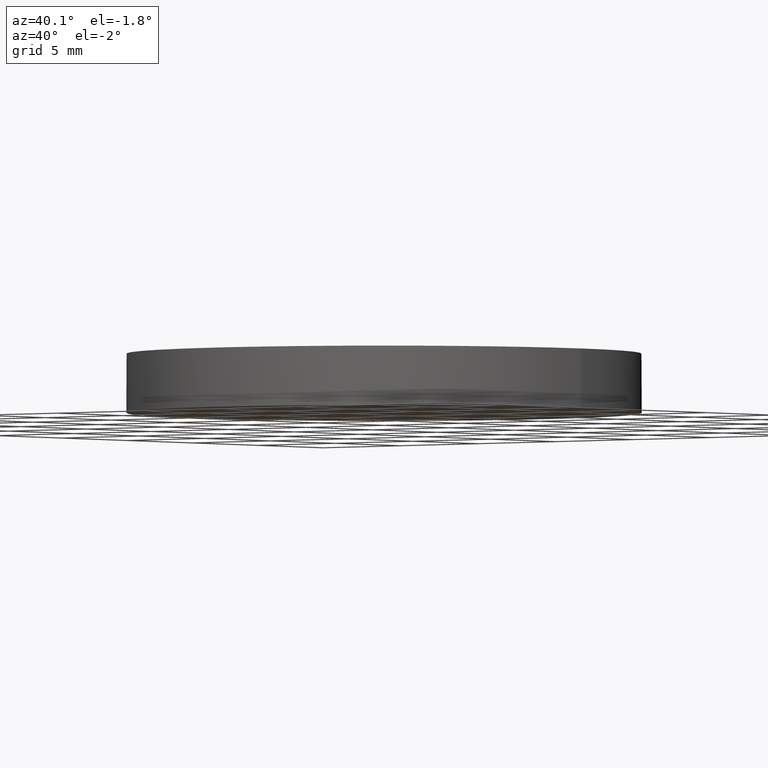
[diagram: clean part render]
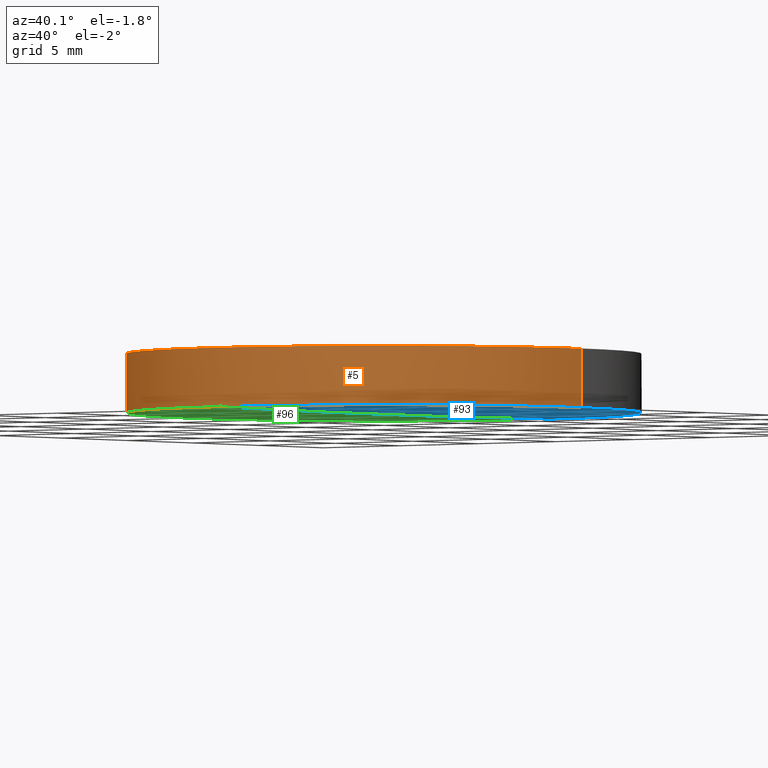
[diagram: same view with three faces highlighted in distinct colors, each labeled with its STEP entity id]
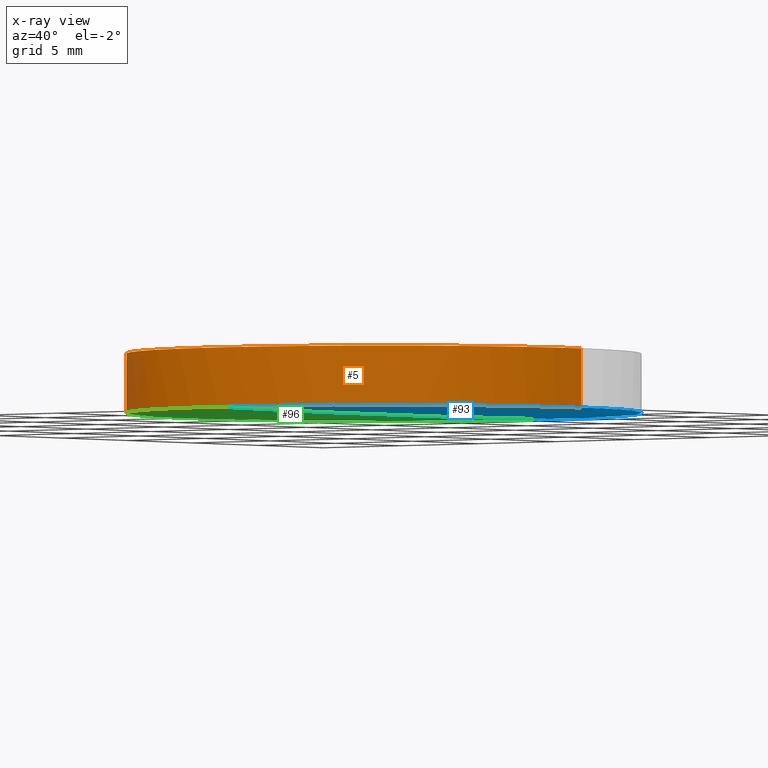
[diagram: x-ray of the same camera — body ghosted, the three highlighted faces saturated]
A machine part, auxiliary view with three faces highlighted in distinct colors.
The next image is the same camera in x-ray (body ghosted, the three faces saturated) — at least one of them is partly hidden behind the body in this view.
Their STEP definitions:

[orange] entity #5 — the highlighted cylindrical surface (partial cylindrical patch) has radius 12.7 mm, axis along (0, 0, 1).
#2 = EDGE_CURVE ( 'NONE', #45, #191, #126, .T. ) ;
#5 = ADVANCED_FACE ( 'NONE', ( #195 ), #73, .T. ) ;
#8 = CARTESIAN_POINT ( 'NONE',  ( -12.69999999999999900, 3.997792089092478900E-015, 0.08182665158325720700 ) ) ;
#24 = DIRECTION ( 'NONE',  ( 1.000000000000000000, 0.0000000000000000000, 0.0000000000000000000 ) ) ;
#32 = VECTOR ( 'NONE', #226, 1000.000000000000000 ) ;
#39 = DIRECTION ( 'NONE',  ( 1.000000000000000000, 0.0000000000000000000, 0.0000000000000000000 ) ) ;
#41 = ORIENTED_EDGE ( 'NONE', *, *, #184, .F. ) ;
#43 = VERTEX_POINT ( 'NONE', #208 ) ;
#45 = VERTEX_POINT ( 'NONE', #166 ) ;
#51 = CARTESIAN_POINT ( 'NONE',  ( 12.69999999999999900, 2.442490654175340100E-015, 0.08182665158325720700 ) ) ;
#52 = CARTESIAN_POINT ( 'NONE',  ( -9.019215825501548900E-014, -12.69999999999729000, 0.08182665158327578900 ) ) ;
#56 = ORIENTED_EDGE ( 'NONE', *, *, #167, .T. ) ;
#63 = EDGE_LOOP ( 'NONE', ( #95, #41, #231, #234, #56 ) ) ;
#68 = CARTESIAN_POINT ( 'NONE',  ( 4.996003610813200500E-016, 2.442490654175340100E-015, 0.08182665158325720700 ) ) ;
#70 = DIRECTION ( 'NONE',  ( 0.0000000000000000000, 0.0000000000000000000, 1.000000000000000000 ) ) ;
#73 = CYLINDRICAL_SURFACE ( 'NONE', #197, 12.69999999999999900 ) ;
#76 = DIRECTION ( 'NONE',  ( 0.0000000000000000000, 0.0000000000000000000, 1.000000000000000000 ) ) ;
#79 = AXIS2_PLACEMENT_3D ( 'NONE', #68, #124, #180 ) ;
#89 = VERTEX_POINT ( 'NONE', #229 ) ;
#92 = AXIS2_PLACEMENT_3D ( 'NONE', #219, #109, #39 ) ;
#95 = ORIENTED_EDGE ( 'NONE', *, *, #2, .F. ) ;
#104 = VECTOR ( 'NONE', #70, 1000.000000000000000 ) ;
#109 = DIRECTION ( 'NONE',  ( -0.0000000000000000000, -0.0000000000000000000, -1.000000000000000000 ) ) ;
#121 = CARTESIAN_POINT ( 'NONE',  ( -12.69999999999999900, 3.997792089092478900E-015, 3.000000000000000000 ) ) ;
#123 = EDGE_CURVE ( 'NONE', #43, #89, #161, .T. ) ;
#124 = DIRECTION ( 'NONE',  ( -0.0000000000000000000, -0.0000000000000000000, -1.000000000000000000 ) ) ;
#126 = LINE ( 'NONE', #8, #32 ) ;
#127 = EDGE_CURVE ( 'NONE', #43, #129, #209, .T. ) ;
#129 = VERTEX_POINT ( 'NONE', #52 ) ;
#131 = CARTESIAN_POINT ( 'NONE',  ( 4.996003610813200500E-016, 2.442490654175340100E-015, 0.08182665158325720700 ) ) ;
#138 = CIRCLE ( 'NONE', #210, 12.69999999999999900 ) ;
#140 = DIRECTION ( 'NONE',  ( 1.000000000000000000, 0.0000000000000000000, 0.0000000000000000000 ) ) ;
#159 = CARTESIAN_POINT ( 'NONE',  ( 4.996003610813200500E-016, 2.442490654175340100E-015, 0.08182665158325720700 ) ) ;
#161 = LINE ( 'NONE', #51, #104 ) ;
#166 = CARTESIAN_POINT ( 'NONE',  ( -12.69999999999999900, 3.997792089092478900E-015, 0.08182665158325720700 ) ) ;
#167 = EDGE_CURVE ( 'NONE', #89, #191, #187, .T. ) ;
#180 = DIRECTION ( 'NONE',  ( 1.000000000000000000, 0.0000000000000000000, 0.0000000000000000000 ) ) ;
#184 = EDGE_CURVE ( 'NONE', #129, #45, #138, .T. ) ;
#187 = CIRCLE ( 'NONE', #92, 12.69999999999999900 ) ;
#191 = VERTEX_POINT ( 'NONE', #121 ) ;
#195 = FACE_OUTER_BOUND ( 'NONE', #63, .T. ) ;
#197 = AXIS2_PLACEMENT_3D ( 'NONE', #131, #76, #24 ) ;
#208 = CARTESIAN_POINT ( 'NONE',  ( 12.69999999999999900, 2.442490654175340100E-015, 0.08182665158325720700 ) ) ;
#209 = CIRCLE ( 'NONE', #79, 12.69999999999999900 ) ;
#210 = AXIS2_PLACEMENT_3D ( 'NONE', #159, #215, #140 ) ;
#215 = DIRECTION ( 'NONE',  ( -0.0000000000000000000, -0.0000000000000000000, -1.000000000000000000 ) ) ;
#219 = CARTESIAN_POINT ( 'NONE',  ( 4.996003610813200500E-016, 2.442490654175340100E-015, 3.000000000000000000 ) ) ;
#226 = DIRECTION ( 'NONE',  ( 0.0000000000000000000, 0.0000000000000000000, 1.000000000000000000 ) ) ;
#229 = CARTESIAN_POINT ( 'NONE',  ( 12.69999999999999900, 2.442490654175340100E-015, 3.000000000000000000 ) ) ;
#231 = ORIENTED_EDGE ( 'NONE', *, *, #127, .F. ) ;
#234 = ORIENTED_EDGE ( 'NONE', *, *, #123, .T. ) ;

[blue] entity #93 — the highlighted face is a freeform B-spline surface patch.
#1 = CARTESIAN_POINT ( 'NONE',  ( 4.996003610813200500E-016, 2.442490654175340100E-015, 0.08182665158325720700 ) ) ;
#3 = ORIENTED_EDGE ( 'NONE', *, *, #127, .T. ) ;
#6 = ORIENTED_EDGE ( 'NONE', *, *, #16, .T. ) ;
#16 = EDGE_CURVE ( 'NONE', #129, #36, #202, .T. ) ;
#17 = DIRECTION ( 'NONE',  ( -0.0000000000000000000, -0.0000000000000000000, -1.000000000000000000 ) ) ;
#20 = FACE_OUTER_BOUND ( 'NONE', #82, .T. ) ;
#26 = AXIS2_PLACEMENT_3D ( 'NONE', #214, #99, #190 ) ;
#28 = CARTESIAN_POINT ( 'NONE',  ( 12.77655787048304800, 4.284373327981428200, 0.05487818495982228800 ) ) ;
#30 = CARTESIAN_POINT ( 'NONE',  ( 4.259001726864794600, 4.284373327981430000, -0.02793566560405784000 ) ) ;
#34 = DIRECTION ( 'NONE',  ( 1.000000000000000000, -1.776356839400250500E-015, 0.0000000000000000000 ) ) ;
#36 = VERTEX_POINT ( 'NONE', #206 ) ;
#43 = VERTEX_POINT ( 'NONE', #208 ) ;
#52 = CARTESIAN_POINT ( 'NONE',  ( -9.019215825501548900E-014, -12.69999999999729000, 0.08182665158327578900 ) ) ;
#53 = ORIENTED_EDGE ( 'NONE', *, *, #174, .T. ) ;
#57 = AXIS2_PLACEMENT_3D ( 'NONE', #1, #17, #34 ) ;
#62 = CARTESIAN_POINT ( 'NONE',  ( 4.258518895623539400, 12.85239141229468300, 0.08380224626203161600 ) ) ;
#64 = CARTESIAN_POINT ( 'NONE',  ( 12.77510942746959300, 12.85239141229468100, 0.1666067084488165300 ) ) ;
#68 = CARTESIAN_POINT ( 'NONE',  ( 4.996003610813200500E-016, 2.442490654175340100E-015, 0.08182665158325720700 ) ) ;
#79 = AXIS2_PLACEMENT_3D ( 'NONE', #68, #124, #180 ) ;
#81 = CARTESIAN_POINT ( 'NONE',  ( 4.259001726864791900, -4.284373327980987700, -0.02793566560405892300 ) ) ;
#82 = EDGE_LOOP ( 'NONE', ( #3, #6, #53 ) ) ;
#83 = CARTESIAN_POINT ( 'NONE',  ( 8.516948338615323500, 12.85239141229468300, 0.1114041201864036700 ) ) ;
#93 = ADVANCED_FACE ( 'NONE', ( #20 ), #146, .T. ) ;
#97 = CIRCLE ( 'NONE', #57, 12.69999999999999900 ) ;
#99 = DIRECTION ( 'NONE',  ( 1.000000000000000000, -2.358650648363000000E-016, -2.038354188545150100E-016 ) ) ;
#102 = CARTESIAN_POINT ( 'NONE',  ( -8.416483910166389800E-014, 12.85239141229468500, 0.08380224626203247600 ) ) ;
#115 = CARTESIAN_POINT ( 'NONE',  ( -8.620851138670619400E-014, 4.284373327981430900, -0.02793566560405697300 ) ) ;
#116 = CARTESIAN_POINT ( 'NONE',  ( 8.516948338615316400, -12.85239141229424200, 0.1114041201864036700 ) ) ;
#124 = DIRECTION ( 'NONE',  ( -0.0000000000000000000, -0.0000000000000000000, -1.000000000000000000 ) ) ;
#127 = EDGE_CURVE ( 'NONE', #43, #129, #209, .T. ) ;
#129 = VERTEX_POINT ( 'NONE', #52 ) ;
#133 = CARTESIAN_POINT ( 'NONE',  ( 12.77655787048304600, -4.284373327980989500, 0.05487818495982120500 ) ) ;
#134 = CARTESIAN_POINT ( 'NONE',  ( 4.258518895623534000, -12.85239141229424200, 0.08380224626203161600 ) ) ;
#137 = CARTESIAN_POINT ( 'NONE',  ( -8.822957937228058900E-014, -4.284373327980986800, -0.02793566560405805900 ) ) ;
#146 =( BOUNDED_SURFACE ( )  B_SPLINE_SURFACE ( 3, 3, ( 
 ( #228, #134, #116, #232 ),
 ( #137, #81, #151, #133 ),
 ( #115, #30, #168, #28 ),
 ( #102, #62, #83, #64 ) ),
 .UNSPECIFIED., .F., .F., .F. ) 
 B_SPLINE_SURFACE_WITH_KNOTS ( ( 4, 4 ),
 ( 4, 4 ),
 ( 0.0000000000000000000, 1.000000000000000000 ),
 ( 0.0000000000000000000, 1.000000000000000000 ),
 .UNSPECIFIED. ) 
 GEOMETRIC_REPRESENTATION_ITEM ( )  RATIONAL_B_SPLINE_SURFACE ( (
 ( 1.000000000000000000, 0.9999859962843055100, 0.9999859962843055100, 1.000000000000000000),
 ( 0.9999433155801800100, 0.9999293126582780000, 0.9999293126582780000, 0.9999433155801800100),
 ( 0.9999433155801800100, 0.9999293126582780000, 0.9999293126582780000, 0.9999433155801800100),
 ( 1.000000000000000000, 0.9999859962843055100, 0.9999859962843055100, 1.000000000000000000) ) ) 
 REPRESENTATION_ITEM ( '' )  SURFACE ( )  );
#151 = CARTESIAN_POINT ( 'NONE',  ( 8.517913990955680200, -4.284373327980988600, -0.0003306621768304633700 ) ) ;
#168 = CARTESIAN_POINT ( 'NONE',  ( 8.517913990955682000, 4.284373327981429100, -0.0003306621768293791100 ) ) ;
#174 = EDGE_CURVE ( 'NONE', #36, #43, #97, .T. ) ;
#180 = DIRECTION ( 'NONE',  ( 1.000000000000000000, 0.0000000000000000000, 0.0000000000000000000 ) ) ;
#190 = DIRECTION ( 'NONE',  ( -2.358650648363000000E-016, -1.000000000000000000, 2.252887631138710800E-016 ) ) ;
#202 = CIRCLE ( 'NONE', #26, 985.5999999999999100 ) ;
#206 = CARTESIAN_POINT ( 'NONE',  ( -8.420118560817468000E-014, 12.69999999999757600, 0.08182665158327578900 ) ) ;
#208 = CARTESIAN_POINT ( 'NONE',  ( 12.69999999999999900, 2.442490654175340100E-015, 0.08182665158325720700 ) ) ;
#209 = CIRCLE ( 'NONE', #79, 12.69999999999999900 ) ;
#214 = CARTESIAN_POINT ( 'NONE',  ( 1.136868377216160000E-013, 2.842170943040400200E-013, 985.6000000000000200 ) ) ;
#228 = CARTESIAN_POINT ( 'NONE',  ( -9.022769936918857100E-014, -12.85239141229424000, 0.08380224626203247600 ) ) ;
#232 = CARTESIAN_POINT ( 'NONE',  ( 12.77510942746958600, -12.85239141229424400, 0.1666067084488165300 ) ) ;

[green] entity #96 — the highlighted face is a freeform B-spline surface patch.
#7 = CIRCLE ( 'NONE', #74, 12.69999999999999900 ) ;
#9 = DIRECTION ( 'NONE',  ( 1.000000000000000000, 0.0000000000000000000, 0.0000000000000000000 ) ) ;
#11 = EDGE_CURVE ( 'NONE', #45, #36, #7, .T. ) ;
#12 = CARTESIAN_POINT ( 'NONE',  ( -8.517913990956008900, -4.284373327980984100, -0.0003306621768354032100 ) ) ;
#16 = EDGE_CURVE ( 'NONE', #129, #36, #202, .T. ) ;
#26 = AXIS2_PLACEMENT_3D ( 'NONE', #214, #99, #190 ) ;
#29 = CARTESIAN_POINT ( 'NONE',  ( -8.516948338615646800, -12.85239141229423900, 0.1114041201863987400 ) ) ;
#33 = CARTESIAN_POINT ( 'NONE',  ( -4.259001726865159700, 4.284373327981432700, -0.02793566560411626200 ) ) ;
#36 = VERTEX_POINT ( 'NONE', #206 ) ;
#38 = CARTESIAN_POINT ( 'NONE',  ( -3.209238430557093100E-013, 12.85239141229468500, 0.08380224626197127500 ) ) ;
#45 = VERTEX_POINT ( 'NONE', #166 ) ;
#46 = CARTESIAN_POINT ( 'NONE',  ( -12.77510942746987000, -12.85239141229423700, 0.1666067084488132000 ) ) ;
#47 = CARTESIAN_POINT ( 'NONE',  ( -12.77510942746986300, 12.85239141229468800, 0.1666067084488132000 ) ) ;
#52 = CARTESIAN_POINT ( 'NONE',  ( -9.019215825501548900E-014, -12.69999999999729000, 0.08182665158327578900 ) ) ;
#74 = AXIS2_PLACEMENT_3D ( 'NONE', #114, #119, #9 ) ;
#77 = ORIENTED_EDGE ( 'NONE', *, *, #184, .T. ) ;
#80 = CARTESIAN_POINT ( 'NONE',  ( -4.259001726865163200, -4.284373327980985000, -0.02793566560411739700 ) ) ;
#96 = ADVANCED_FACE ( 'NONE', ( #110 ), #136, .T. ) ;
#99 = DIRECTION ( 'NONE',  ( 1.000000000000000000, -2.358650648363000000E-016, -2.038354188545150100E-016 ) ) ;
#101 = CARTESIAN_POINT ( 'NONE',  ( -4.258518895623906200, -12.85239141229423900, 0.08380224626197314800 ) ) ;
#110 = FACE_OUTER_BOUND ( 'NONE', #172, .T. ) ;
#114 = CARTESIAN_POINT ( 'NONE',  ( 4.996003610813200500E-016, 2.442490654175340100E-015, 0.08182665158325720700 ) ) ;
#119 = DIRECTION ( 'NONE',  ( -0.0000000000000000000, -0.0000000000000000000, -1.000000000000000000 ) ) ;
#129 = VERTEX_POINT ( 'NONE', #52 ) ;
#135 = CARTESIAN_POINT ( 'NONE',  ( -3.278627369596165400E-013, -12.85239141229424000, 0.08380224626197124700 ) ) ;
#136 =( BOUNDED_SURFACE ( )  B_SPLINE_SURFACE ( 3, 3, ( 
 ( #46, #29, #101, #135 ),
 ( #173, #12, #80, #170 ),
 ( #193, #211, #33, #154 ),
 ( #47, #175, #220, #38 ) ),
 .UNSPECIFIED., .F., .F., .F. ) 
 B_SPLINE_SURFACE_WITH_KNOTS ( ( 4, 4 ),
 ( 4, 4 ),
 ( 0.0000000000000000000, 1.000000000000000000 ),
 ( 0.0000000000000000000, 1.000000000000000000 ),
 .UNSPECIFIED. ) 
 GEOMETRIC_REPRESENTATION_ITEM ( )  RATIONAL_B_SPLINE_SURFACE ( (
 ( 1.000000000000000000, 0.9999859962843055100, 0.9999859962843055100, 1.000000000000000000),
 ( 0.9999433155801800100, 0.9999293126582780000, 0.9999293126582780000, 0.9999433155801800100),
 ( 0.9999433155801800100, 0.9999293126582780000, 0.9999293126582780000, 0.9999433155801800100),
 ( 1.000000000000000000, 0.9999859962843055100, 0.9999859962843055100, 1.000000000000000000) ) ) 
 REPRESENTATION_ITEM ( '' )  SURFACE ( )  );
#138 = CIRCLE ( 'NONE', #210, 12.69999999999999900 ) ;
#140 = DIRECTION ( 'NONE',  ( 1.000000000000000000, 0.0000000000000000000, 0.0000000000000000000 ) ) ;
#154 = CARTESIAN_POINT ( 'NONE',  ( -3.243932900076629300E-013, 4.284373327981431800, -0.02793566560411816400 ) ) ;
#159 = CARTESIAN_POINT ( 'NONE',  ( 4.996003610813200500E-016, 2.442490654175340100E-015, 0.08182665158325720700 ) ) ;
#166 = CARTESIAN_POINT ( 'NONE',  ( -12.69999999999999900, 3.997792089092478900E-015, 0.08182665158325720700 ) ) ;
#170 = CARTESIAN_POINT ( 'NONE',  ( -3.278627369596165400E-013, -4.284373327980985900, -0.02793566560411930200 ) ) ;
#172 = EDGE_LOOP ( 'NONE', ( #185, #77, #182 ) ) ;
#173 = CARTESIAN_POINT ( 'NONE',  ( -12.77655787048332700, -4.284373327980983200, 0.05487818495981786800 ) ) ;
#175 = CARTESIAN_POINT ( 'NONE',  ( -8.516948338615639700, 12.85239141229468600, 0.1114041201863987400 ) ) ;
#182 = ORIENTED_EDGE ( 'NONE', *, *, #11, .T. ) ;
#184 = EDGE_CURVE ( 'NONE', #129, #45, #138, .T. ) ;
#185 = ORIENTED_EDGE ( 'NONE', *, *, #16, .F. ) ;
#190 = DIRECTION ( 'NONE',  ( -2.358650648363000000E-016, -1.000000000000000000, 2.252887631138710800E-016 ) ) ;
#193 = CARTESIAN_POINT ( 'NONE',  ( -12.77655787048332300, 4.284373327981434400, 0.05487818495981895000 ) ) ;
#202 = CIRCLE ( 'NONE', #26, 985.5999999999999100 ) ;
#206 = CARTESIAN_POINT ( 'NONE',  ( -8.420118560817468000E-014, 12.69999999999757600, 0.08182665158327578900 ) ) ;
#210 = AXIS2_PLACEMENT_3D ( 'NONE', #159, #215, #140 ) ;
#211 = CARTESIAN_POINT ( 'NONE',  ( -8.517913990956005300, 4.284373327981433600, -0.0003306621768343122900 ) ) ;
#214 = CARTESIAN_POINT ( 'NONE',  ( 1.136868377216160000E-013, 2.842170943040400200E-013, 985.6000000000000200 ) ) ;
#215 = DIRECTION ( 'NONE',  ( -0.0000000000000000000, -0.0000000000000000000, -1.000000000000000000 ) ) ;
#220 = CARTESIAN_POINT ( 'NONE',  ( -4.258518895623900000, 12.85239141229468600, 0.08380224626197317600 ) ) ;